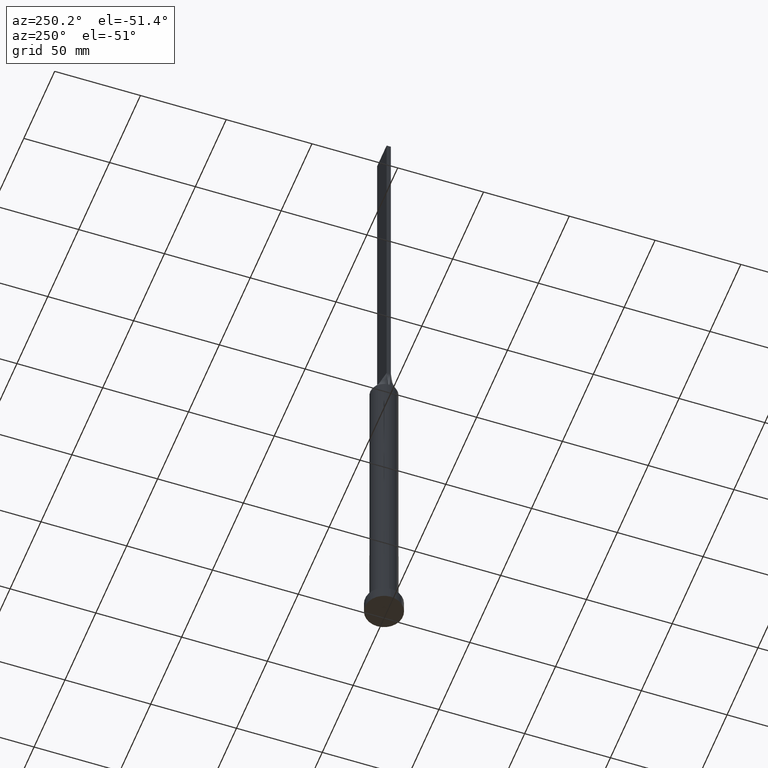
[diagram: clean part render]
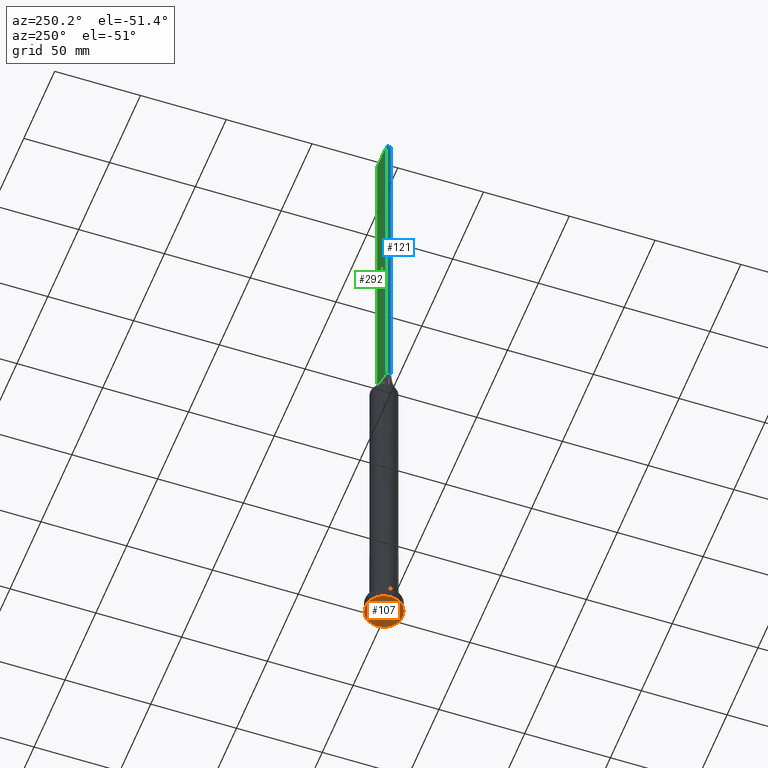
[diagram: same view with three faces highlighted in distinct colors, each labeled with its STEP entity id]
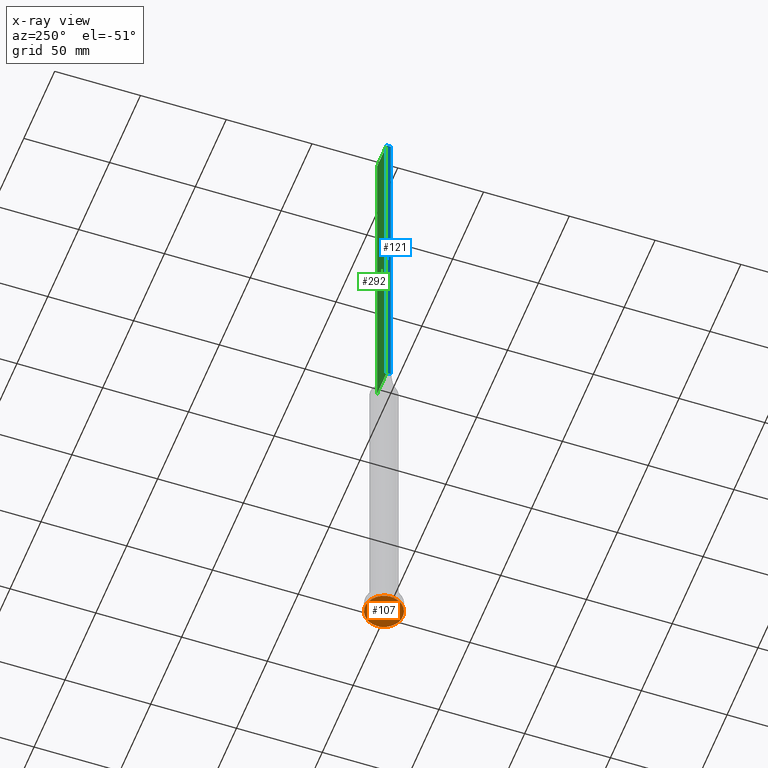
[diagram: x-ray of the same camera — body ghosted, the three highlighted faces saturated]
A machine part, auxiliary view with three faces highlighted in distinct colors.
The next image is the same camera in x-ray (body ghosted, the three faces saturated) — at least one of them is partly hidden behind the body in this view.
Their STEP definitions:

[orange] entity #107 — the highlighted planar face has unit normal (0, 0, 1).
#8 = CARTESIAN_POINT ( 'NONE',  ( -11.00000000000000000, 0.000000000000000000, 0.000000000000000000 ) ) ;
#64 = EDGE_CURVE ( 'NONE', #579, #628, #206, .T. ) ;
#107 = ADVANCED_FACE ( 'NONE', ( #441 ), #274, .F. ) ;
#114 = ORIENTED_EDGE ( 'NONE', *, *, #64, .F. ) ;
#139 = DIRECTION ( 'NONE',  ( 1.000000000000000000, 0.000000000000000000, 0.000000000000000000 ) ) ;
#155 = EDGE_CURVE ( 'NONE', #628, #579, #430, .T. ) ;
#165 = CARTESIAN_POINT ( 'NONE',  ( 11.00000000000000000, 1.347111479062088405E-15, 0.000000000000000000 ) ) ;
#181 = CARTESIAN_POINT ( 'NONE',  ( 0.000000000000000000, 0.000000000000000000, 0.000000000000000000 ) ) ;
#206 = CIRCLE ( 'NONE', #354, 11.00000000000000000 ) ;
#248 = AXIS2_PLACEMENT_3D ( 'NONE', #181, #330, #380 ) ;
#274 = PLANE ( 'NONE',  #386 ) ;
#284 = DIRECTION ( 'NONE',  ( 0.000000000000000000, 0.000000000000000000, 1.000000000000000000 ) ) ;
#322 = CARTESIAN_POINT ( 'NONE',  ( 0.000000000000000000, 0.000000000000000000, 0.000000000000000000 ) ) ;
#330 = DIRECTION ( 'NONE',  ( 0.000000000000000000, 0.000000000000000000, 1.000000000000000000 ) ) ;
#354 = AXIS2_PLACEMENT_3D ( 'NONE', #389, #284, #139 ) ;
#380 = DIRECTION ( 'NONE',  ( 1.000000000000000000, 0.000000000000000000, 0.000000000000000000 ) ) ;
#386 = AXIS2_PLACEMENT_3D ( 'NONE', #322, #588, #424 ) ;
#389 = CARTESIAN_POINT ( 'NONE',  ( 0.000000000000000000, 0.000000000000000000, 0.000000000000000000 ) ) ;
#424 = DIRECTION ( 'NONE',  ( 1.000000000000000000, 0.000000000000000000, -0.000000000000000000 ) ) ;
#430 = CIRCLE ( 'NONE', #248, 11.00000000000000000 ) ;
#441 = FACE_OUTER_BOUND ( 'NONE', #517, .T. ) ;
#517 = EDGE_LOOP ( 'NONE', ( #114, #571 ) ) ;
#571 = ORIENTED_EDGE ( 'NONE', *, *, #155, .F. ) ;
#579 = VERTEX_POINT ( 'NONE', #8 ) ;
#588 = DIRECTION ( 'NONE',  ( 0.000000000000000000, 0.000000000000000000, 1.000000000000000000 ) ) ;
#628 = VERTEX_POINT ( 'NONE', #165 ) ;

[blue] entity #121 — the highlighted planar face has unit normal (1, 0, -0).
#25 = LINE ( 'NONE', #531, #605 ) ;
#91 = CARTESIAN_POINT ( 'NONE',  ( -7.750000000000000000, 1.250000000000000222, 400.0000000000000000 ) ) ;
#99 = ORIENTED_EDGE ( 'NONE', *, *, #153, .T. ) ;
#111 = ORIENTED_EDGE ( 'NONE', *, *, #422, .F. ) ;
#121 = ADVANCED_FACE ( 'NONE', ( #338 ), #134, .F. ) ;
#134 = PLANE ( 'NONE',  #473 ) ;
#142 = LINE ( 'NONE', #447, #363 ) ;
#153 = EDGE_CURVE ( 'NONE', #308, #207, #429, .T. ) ;
#179 = CARTESIAN_POINT ( 'NONE',  ( -7.750000000000000000, 1.250000000000000222, 400.0000000000000000 ) ) ;
#190 = VECTOR ( 'NONE', #625, 1000.000000000000000 ) ;
#204 = CARTESIAN_POINT ( 'NONE',  ( -7.750000000000000000, 1.250000000000000222, 200.0000000000000000 ) ) ;
#207 = VERTEX_POINT ( 'NONE', #204 ) ;
#238 = VECTOR ( 'NONE', #613, 1000.000000000000000 ) ;
#242 = DIRECTION ( 'NONE',  ( 0.000000000000000000, -1.000000000000000000, 0.000000000000000000 ) ) ;
#246 = CARTESIAN_POINT ( 'NONE',  ( -7.750000000000000000, -1.249999999999998890, 400.0000000000000000 ) ) ;
#256 = VERTEX_POINT ( 'NONE', #246 ) ;
#258 = VERTEX_POINT ( 'NONE', #293 ) ;
#293 = CARTESIAN_POINT ( 'NONE',  ( -7.750000000000000000, -1.249999999999998890, 200.0000000000000000 ) ) ;
#301 = ORIENTED_EDGE ( 'NONE', *, *, #362, .T. ) ;
#308 = VERTEX_POINT ( 'NONE', #549 ) ;
#314 = EDGE_LOOP ( 'NONE', ( #301, #111, #542, #99 ) ) ;
#338 = FACE_OUTER_BOUND ( 'NONE', #314, .T. ) ;
#362 = EDGE_CURVE ( 'NONE', #207, #258, #142, .T. ) ;
#363 = VECTOR ( 'NONE', #242, 1000.000000000000000 ) ;
#375 = DIRECTION ( 'NONE',  ( -0.000000000000000000, 0.000000000000000000, -1.000000000000000000 ) ) ;
#385 = CARTESIAN_POINT ( 'NONE',  ( -7.750000000000000000, 1.250000000000000222, 400.0000000000000000 ) ) ;
#404 = EDGE_CURVE ( 'NONE', #308, #256, #414, .T. ) ;
#414 = LINE ( 'NONE', #179, #238 ) ;
#422 = EDGE_CURVE ( 'NONE', #256, #258, #25, .T. ) ;
#429 = LINE ( 'NONE', #385, #190 ) ;
#447 = CARTESIAN_POINT ( 'NONE',  ( -7.750000000000000000, 1.250000000000000222, 200.0000000000000000 ) ) ;
#473 = AXIS2_PLACEMENT_3D ( 'NONE', #91, #538, #375 ) ;
#531 = CARTESIAN_POINT ( 'NONE',  ( -7.750000000000000000, -1.249999999999998890, 400.0000000000000000 ) ) ;
#538 = DIRECTION ( 'NONE',  ( 1.000000000000000000, 0.000000000000000000, -0.000000000000000000 ) ) ;
#542 = ORIENTED_EDGE ( 'NONE', *, *, #404, .F. ) ;
#549 = CARTESIAN_POINT ( 'NONE',  ( -7.750000000000000000, 1.250000000000000222, 400.0000000000000000 ) ) ;
#570 = DIRECTION ( 'NONE',  ( -0.000000000000000000, -0.000000000000000000, -1.000000000000000000 ) ) ;
#605 = VECTOR ( 'NONE', #570, 1000.000000000000000 ) ;
#613 = DIRECTION ( 'NONE',  ( 0.000000000000000000, -1.000000000000000000, 0.000000000000000000 ) ) ;
#625 = DIRECTION ( 'NONE',  ( -0.000000000000000000, -0.000000000000000000, -1.000000000000000000 ) ) ;

[green] entity #292 — the highlighted planar face has unit normal (0, -1, 0).
#23 = VERTEX_POINT ( 'NONE', #130 ) ;
#105 = LINE ( 'NONE', #249, #509 ) ;
#112 = VECTOR ( 'NONE', #553, 1000.000000000000000 ) ;
#116 = CARTESIAN_POINT ( 'NONE',  ( 7.750000000000000000, 1.250000000000000222, 400.0000000000000000 ) ) ;
#117 = VERTEX_POINT ( 'NONE', #622 ) ;
#130 = CARTESIAN_POINT ( 'NONE',  ( 7.750000000000000000, 1.250000000000000222, 400.0000000000000000 ) ) ;
#147 = ORIENTED_EDGE ( 'NONE', *, *, #353, .T. ) ;
#153 = EDGE_CURVE ( 'NONE', #308, #207, #429, .T. ) ;
#171 = LINE ( 'NONE', #116, #536 ) ;
#190 = VECTOR ( 'NONE', #625, 1000.000000000000000 ) ;
#197 = LINE ( 'NONE', #544, #112 ) ;
#202 = DIRECTION ( 'NONE',  ( 0.000000000000000000, -1.000000000000000000, 0.000000000000000000 ) ) ;
#204 = CARTESIAN_POINT ( 'NONE',  ( -7.750000000000000000, 1.250000000000000222, 200.0000000000000000 ) ) ;
#207 = VERTEX_POINT ( 'NONE', #204 ) ;
#213 = ORIENTED_EDGE ( 'NONE', *, *, #153, .F. ) ;
#227 = ORIENTED_EDGE ( 'NONE', *, *, #374, .F. ) ;
#239 = DIRECTION ( 'NONE',  ( 0.000000000000000000, -0.000000000000000000, -1.000000000000000000 ) ) ;
#249 = CARTESIAN_POINT ( 'NONE',  ( 7.750000000000000000, 1.250000000000000222, 400.0000000000000000 ) ) ;
#292 = ADVANCED_FACE ( 'NONE', ( #393 ), #591, .F. ) ;
#305 = EDGE_LOOP ( 'NONE', ( #147, #213, #227, #470 ) ) ;
#308 = VERTEX_POINT ( 'NONE', #549 ) ;
#353 = EDGE_CURVE ( 'NONE', #117, #207, #197, .T. ) ;
#374 = EDGE_CURVE ( 'NONE', #23, #308, #105, .T. ) ;
#385 = CARTESIAN_POINT ( 'NONE',  ( -7.750000000000000000, 1.250000000000000222, 400.0000000000000000 ) ) ;
#393 = FACE_OUTER_BOUND ( 'NONE', #305, .T. ) ;
#400 = CARTESIAN_POINT ( 'NONE',  ( 7.750000000000000000, 1.250000000000000222, 400.0000000000000000 ) ) ;
#429 = LINE ( 'NONE', #385, #190 ) ;
#454 = DIRECTION ( 'NONE',  ( -1.000000000000000000, 0.000000000000000000, 0.000000000000000000 ) ) ;
#461 = EDGE_CURVE ( 'NONE', #23, #117, #171, .T. ) ;
#462 = AXIS2_PLACEMENT_3D ( 'NONE', #400, #202, #239 ) ;
#470 = ORIENTED_EDGE ( 'NONE', *, *, #461, .T. ) ;
#509 = VECTOR ( 'NONE', #454, 1000.000000000000000 ) ;
#536 = VECTOR ( 'NONE', #578, 1000.000000000000000 ) ;
#544 = CARTESIAN_POINT ( 'NONE',  ( -7.750000000000000000, 1.250000000000000222, 200.0000000000000000 ) ) ;
#549 = CARTESIAN_POINT ( 'NONE',  ( -7.750000000000000000, 1.250000000000000222, 400.0000000000000000 ) ) ;
#553 = DIRECTION ( 'NONE',  ( -1.000000000000000000, -0.000000000000000000, -0.000000000000000000 ) ) ;
#578 = DIRECTION ( 'NONE',  ( -0.000000000000000000, -0.000000000000000000, -1.000000000000000000 ) ) ;
#591 = PLANE ( 'NONE',  #462 ) ;
#622 = CARTESIAN_POINT ( 'NONE',  ( 7.750000000000000000, 1.250000000000000222, 200.0000000000000000 ) ) ;
#625 = DIRECTION ( 'NONE',  ( -0.000000000000000000, -0.000000000000000000, -1.000000000000000000 ) ) ;